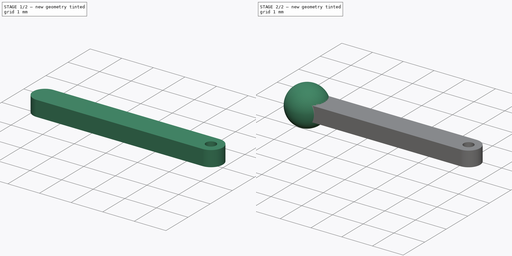
[diagram: build sequence overview — one tinted view per stage of 2, left to right]
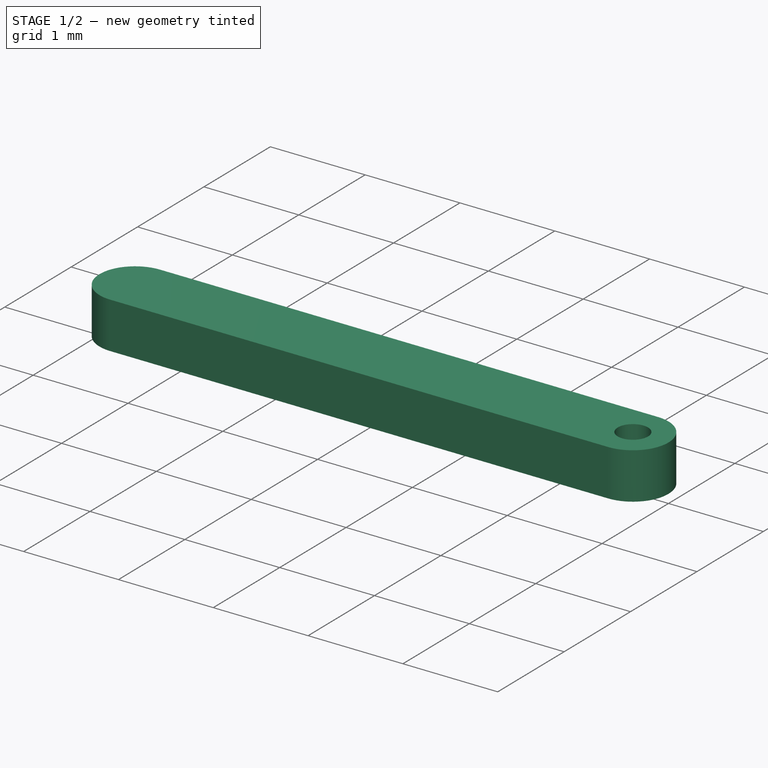
[diagram: stage 1 of 2 — iso view after this stage's code; geometry added in this stage tinted green]
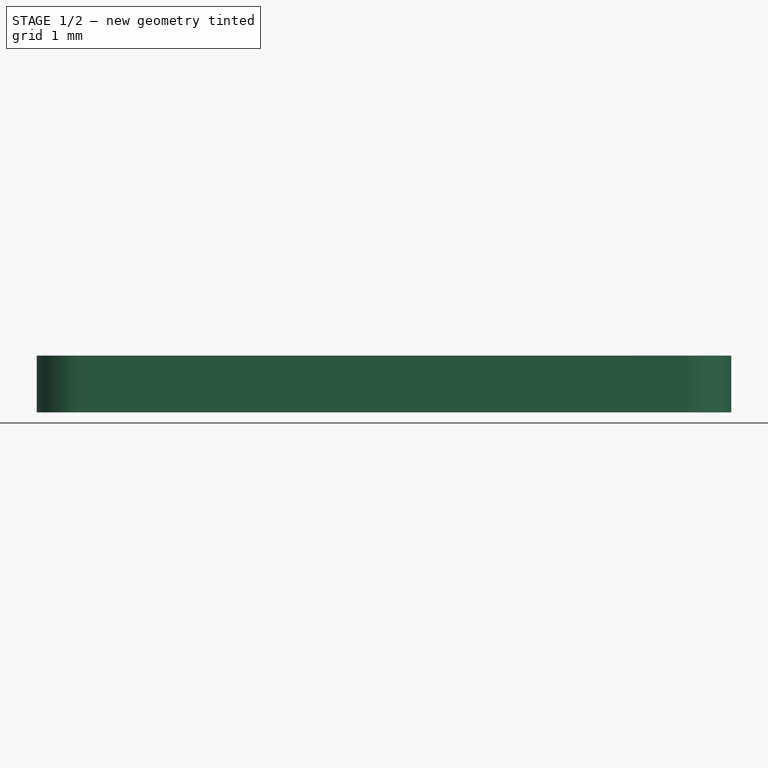
[diagram: stage 1 of 2 — front view after this stage's code; geometry added in this stage tinted green]
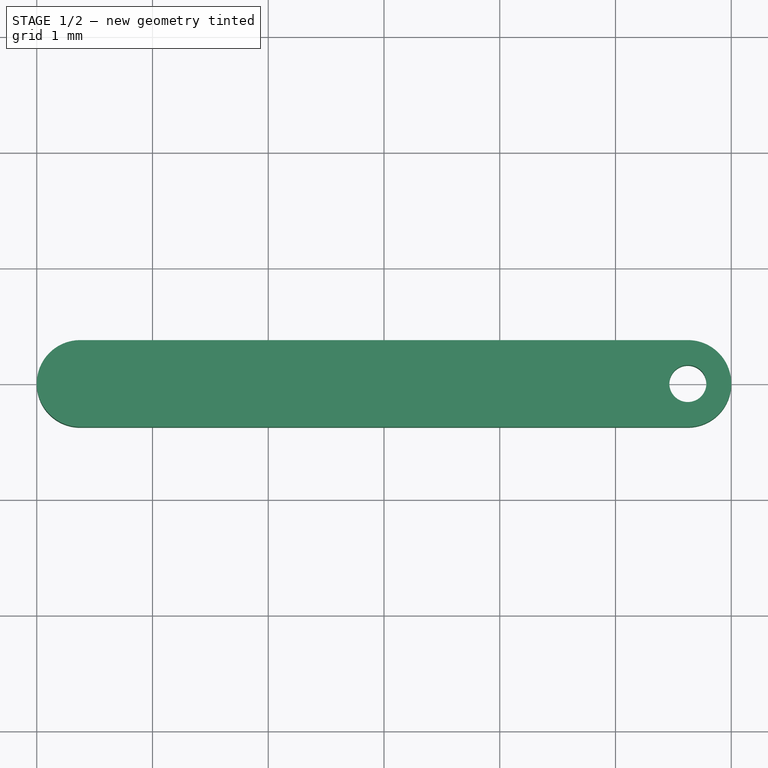
[diagram: stage 1 of 2 — top view after this stage's code; geometry added in this stage tinted green]
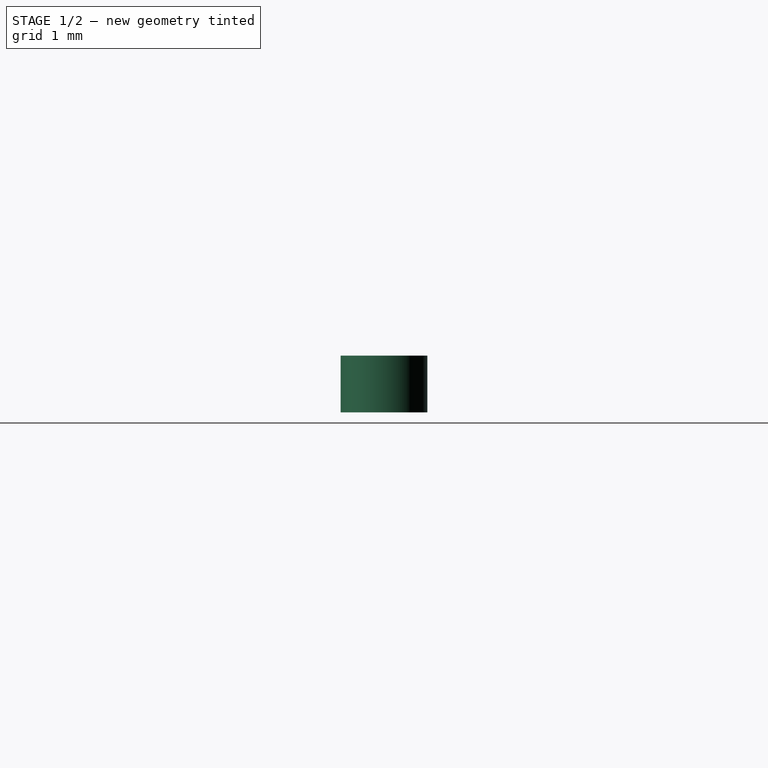
[diagram: stage 1 of 2 — right view after this stage's code; geometry added in this stage tinted green]
FCSTD DOCUMENT  (FreeCAD 0.20R29177 (Git))
Label: mu2
License: All rights reserved
LicenseURL: http://en.wikipedia.org/wiki/All_rights_reserved
objects: Sketcher::SketchObject×2, Spreadsheet::Sheet×1, PartDesign::Pad×1, PartDesign::Line×1, PartDesign::Revolution×1, PartDesign::Body×1
note: 8 computed .brp shape members not serialized (recipe doc carries the construction recipe); baked Part::Feature solids carry a one-line shape summary decoded from their .brp

FEATURE [Spreadsheet::Sheet] Spreadsheet
  cells = A2=Design Parameters; A3=RefLength; B3(RefLength)==1mm; A4=Width; B4(Width)==0.75 * RefLength; A5=Thickness; B5(Thickness)==0.5 * RefLength; A6=ThicknessMargin; B6(ThicknessMargin)==0.01 * RefLength; A7=ThicknessPad; B7(ThicknessPad)==Thickness - ThicknessMargin; A8=Length; B8(Length)==6 * RefLength; A9=PinDiameter; B9(PinDiameter)==0.3 * RefLength; A10=PinMargin; B10(PinMargin)==0.01 * RefLength; A11=PinHoleDiameter; B11(PinHoleDiameter)==PinDiameter + 2 * PinMargin; A12=BallCenterOffsetX; B12(BallCenterOffsetX)==0.5 * Length - 0.5 * Width; A13=BallDiameter; B13(BallDiameter)==1.25 * RefLength; A15=AxisToBallCenter; B15==BallCenterOffsetX + 0.5 * Length - 0.5 * Width
FEATURE [Sketcher::SketchObject] Sketch  label="BeamSketch"
  FullyConstrained = true
  MapMode = 5
  Support = -> [XY_Plane]
  expr: Constraints[20] = Spreadsheet.PinHoleDiameter
  expr: Constraints[25] = Spreadsheet.Length
  expr: Constraints[26] = Spreadsheet.Width
  sketch-geometry (11):
    g0: LineSegment StartX=-2.625 StartY=0.375 StartZ=0 EndX=2.625 EndY=0.375 EndZ=0
    g1: LineSegment StartX=2.625 StartY=-0.375 StartZ=0 EndX=-2.625 EndY=-0.375 EndZ=0
    g2: LineSegment StartX=2.625 StartY=0.375 StartZ=0 EndX=2.625 EndY=0 EndZ=0
    g3: LineSegment StartX=2.625 StartY=0 StartZ=0 EndX=2.625 EndY=-0.375 EndZ=0
    g4: ArcOfCircle CenterX=2.625 CenterY=0 CenterZ=0 NormalX=0 NormalY=0 NormalZ=1 AngleXU=0 Radius=0.375 StartAngle=4.71239 EndAngle=7.85398
    g5: Circle CenterX=2.625 CenterY=0 CenterZ=0 NormalX=0 NormalY=0 NormalZ=1 AngleXU=0 Radius=0.16
    g6: LineSegment StartX=-2.625 StartY=0.375 StartZ=0 EndX=-2.625 EndY=0 EndZ=0
    g7: LineSegment StartX=-2.625 StartY=0 StartZ=0 EndX=-2.625 EndY=-0.375 EndZ=0
    g8: ArcOfCircle CenterX=-2.625 CenterY=0 CenterZ=0 NormalX=0 NormalY=0 NormalZ=1 AngleXU=0 Radius=0.375 StartAngle=1.5708 EndAngle=4.71239
    g9: GeomPoint X=-3 Y=0 Z=0
    g10: GeomPoint X=3 Y=0 Z=0
  constraints (27):
    c: Horizontal(g0)
    c: Horizontal(g1)
    c: Symmetric(g0,g1,g-1)
    c: Coincident(g2,g3)
    c: Coincident(g2,g0)
    c: Coincident(g3,g1)
    c: Coincident(g4,g1)
    c: Coincident(g4,g0)
    c: Coincident(g4,g2)
    c: Vertical(g3)
    c: Vertical(g2)
    c: Coincident(g5,g4)
    c: Coincident(g6,g7)
    c: Vertical(g7)
    c: Vertical(g6)
    c: Coincident(g6,g0)
    c: Coincident(g7,g1)
    c: Coincident(g8,g1)
    c: Coincident(g8,g6)
    c: Coincident(g8,g0)
    c: Diameter(g5) = 0.32
    c: PointOnObject(g9,g-1)
    c: PointOnObject(g9,g8)
    c: PointOnObject(g10,g-1)
    c: PointOnObject(g10,g4)
    c: DistanceX(g9,g10) = 6
    c: DistanceY(g1,g0) = 0.75
FEATURE [PartDesign::Pad] Pad  label="BeamPad"
  Direction = (0,0,1)
  Length = 0.49
  Length2 = 10
  Midplane = true
  Profile = -> Sketch
  ReferenceAxis = -> Sketch [N_Axis]
  Type = 0
  expr: Length = Spreadsheet.ThicknessPad
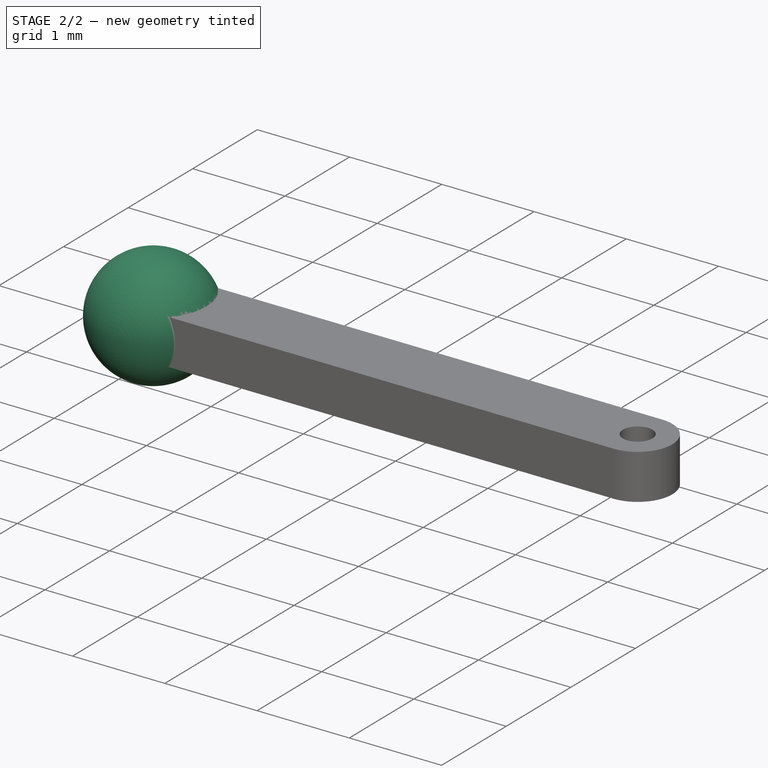
[diagram: stage 2 of 2 — iso view after this stage's code; geometry added in this stage tinted green]
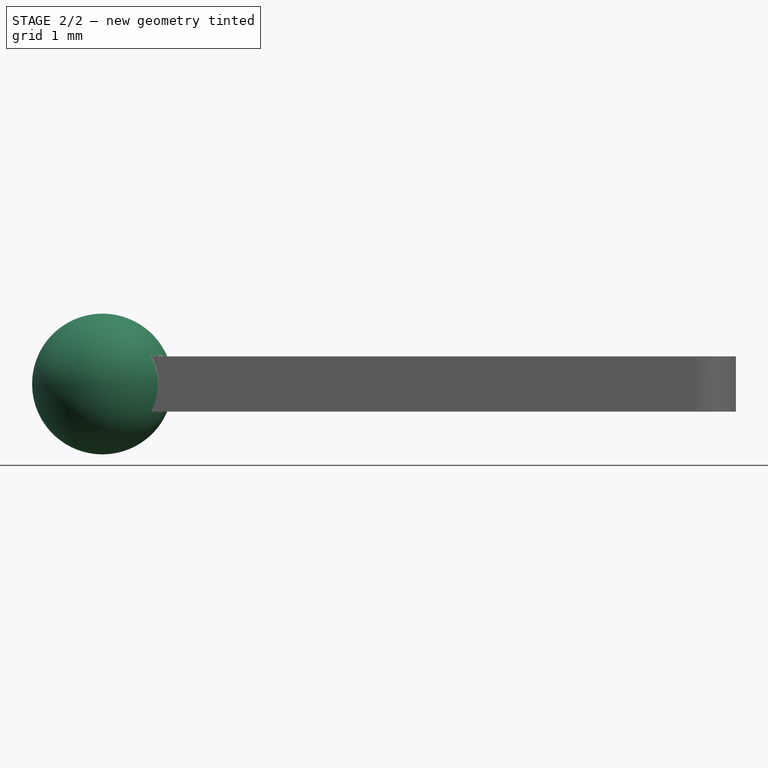
[diagram: stage 2 of 2 — front view after this stage's code; geometry added in this stage tinted green]
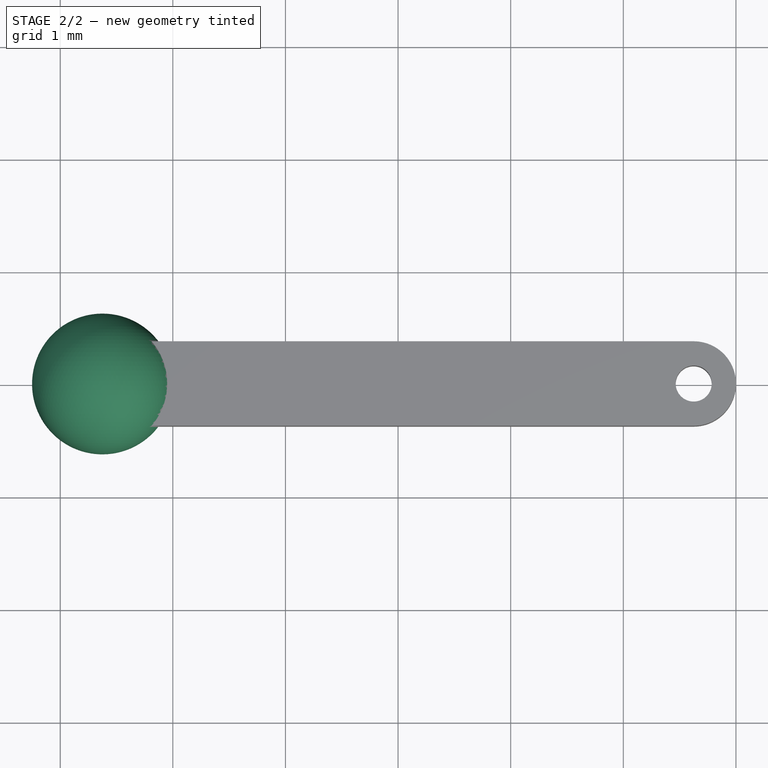
[diagram: stage 2 of 2 — top view after this stage's code; geometry added in this stage tinted green]
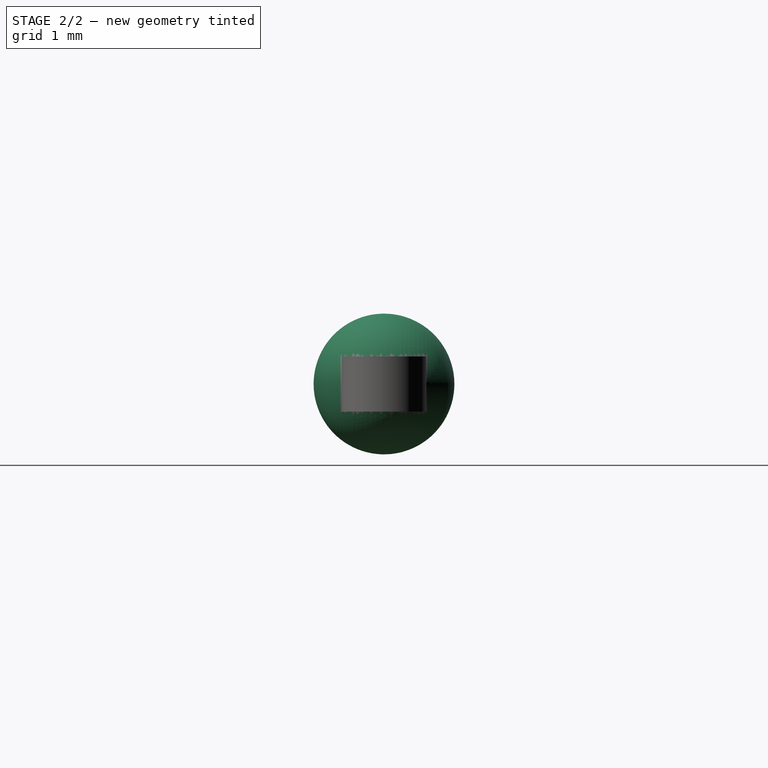
[diagram: stage 2 of 2 — right view after this stage's code; geometry added in this stage tinted green]
FEATURE [Sketcher::SketchObject] Sketch001  label="BallSketch"
  FullyConstrained = true
  MapMode = 5
  Support = -> [XY_Plane]
  expr: Constraints[10] = Spreadsheet.BallDiameter
  expr: Constraints[2] = Spreadsheet.BallCenterOffsetX
  sketch-geometry (4):
    g0: LineSegment StartX=0 StartY=0 StartZ=0 EndX=-2.625 EndY=0 EndZ=0
    g1: LineSegment StartX=-2.625 StartY=0.625 StartZ=0 EndX=-2.625 EndY=0 EndZ=0
    g2: LineSegment StartX=-2.625 StartY=0 StartZ=0 EndX=-2.625 EndY=-0.625 EndZ=0
    g3: ArcOfCircle CenterX=-2.625 CenterY=0 CenterZ=0 NormalX=0 NormalY=0 NormalZ=1 AngleXU=0 Radius=0.625 StartAngle=1.5708 EndAngle=4.71239
  constraints (11):
    c: Horizontal(g0)
    c: Coincident(g0,g-1)
    c: DistanceX(g0,g0) = 2.625
    c: Coincident(g1,g2)
    c: Vertical(g2)
    c: Coincident(g1,g0)
    c: Vertical(g1)
    c: Coincident(g3,g1)
    c: Coincident(g3,g1)
    c: Coincident(g3,g2)
    c: Diameter(g3) = 1.25
FEATURE [PartDesign::Line] DatumLine
  AttacherType = Attacher::AttachEngineLine
  Length = 20
  MapMode = 29
  Placement = pos=(-2.625,0,0) rot=(1,0,0;1.5708rad)
  ResizeMode = 0
  Support = -> [Sketch001]
FEATURE [PartDesign::Revolution] Revolution
  Angle = 360
  Axis = (0,-1,2e-16)
  Base = (-2.625,0,0)
  BaseFeature = -> Pad
  Profile = -> Sketch001
  ReferenceAxis = -> DatumLine
FEATURE [PartDesign::Body] Body
  Group = -> [Sketch,Pad,Sketch001,DatumLine,Revolution]
  Origin = -> Origin
  Tip = -> Revolution
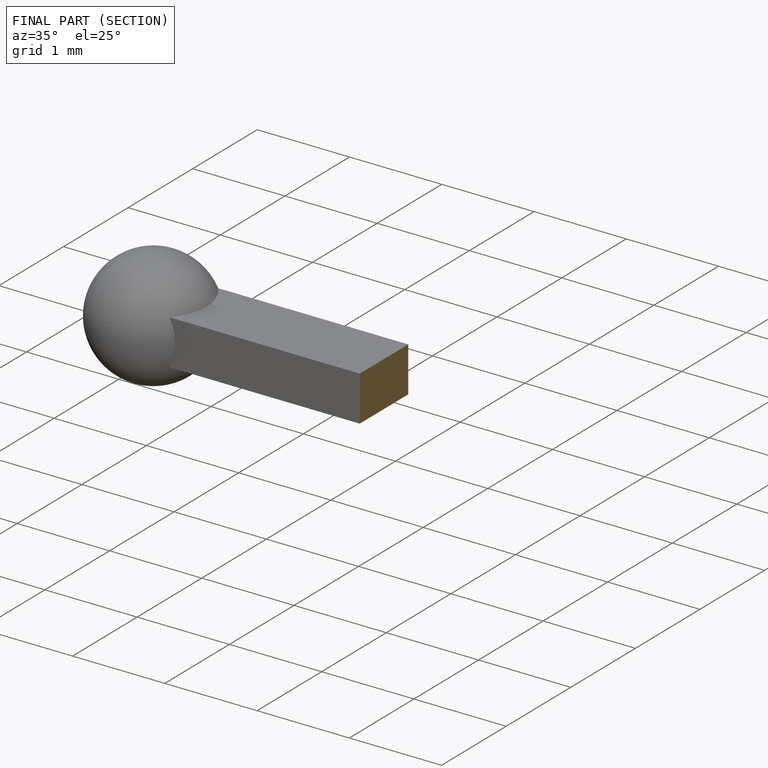
[diagram: finished part — half-section view (interior)]
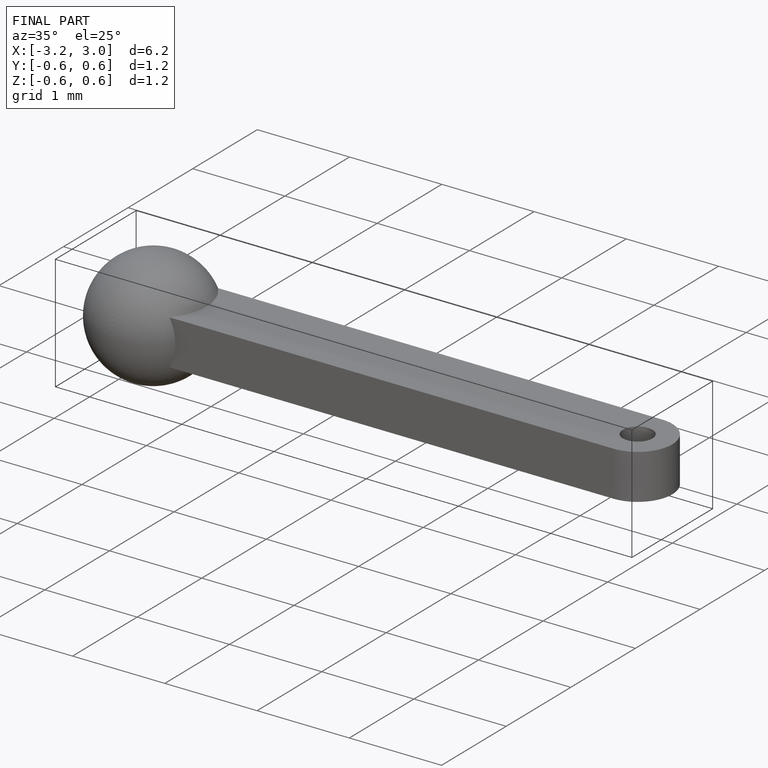
[diagram: finished part — iso view with bounding-box wireframe]
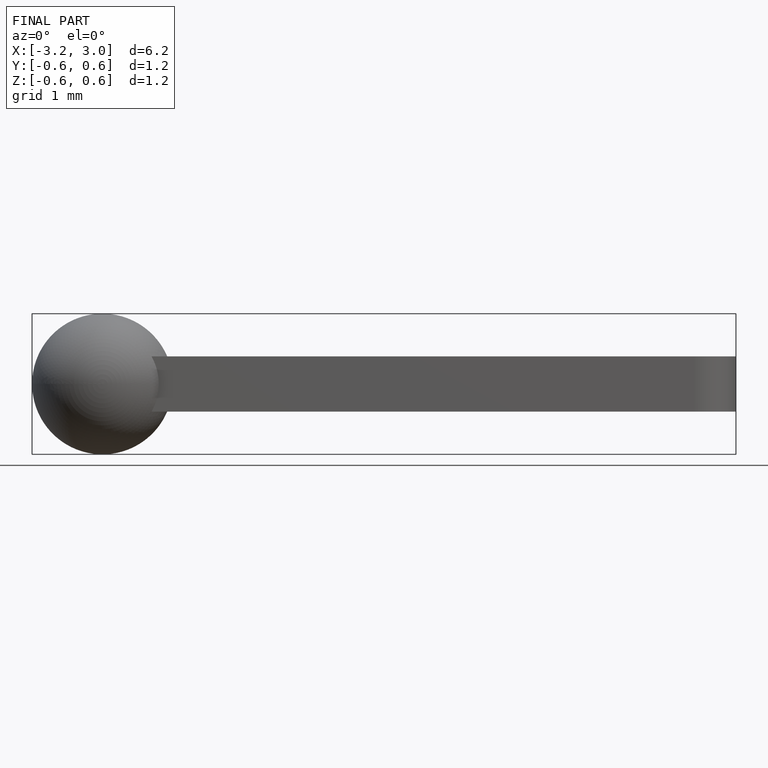
[diagram: finished part — front view with bounding-box wireframe]
